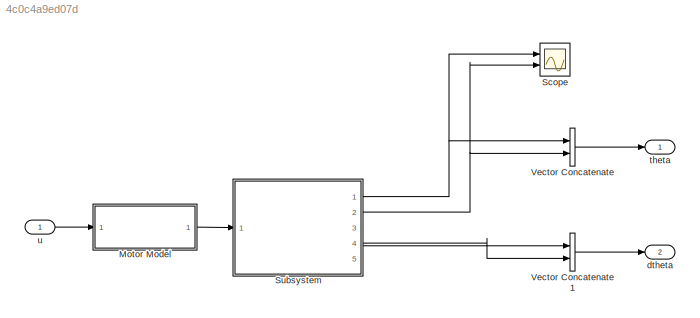
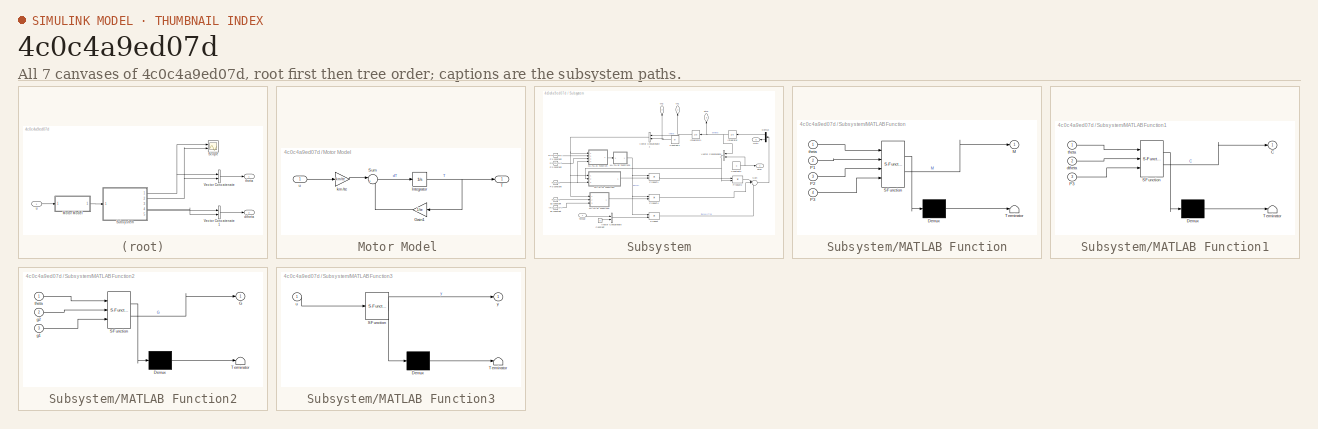
[diagram: thumbnail index - all 7 canvases of the model, root first then tree order]
MODEL slx_4c0c4a9ed07d
KIND model
CONFIG AbsTol = auto
CONFIG EnableMultiTasking = off
CONFIG FixedStep = auto
CONFIG MaxStep = auto
CONFIG MinStep = auto
CONFIG RelTol = 1e-3
CONFIG SampleTimeConstraint = Unconstrained
CONFIG SolverName = VariableStepAuto
CONFIG StartTime = 0.0
CONFIG StopTime = 500
BLOCK [SubSystem] Motor Model 
  Ports = [1, 1]
  RequestExecContextInheritance = off
BLOCK [Gain] Motor Model /Gain1
  Gain = 1/te
  NameLocation = top
BLOCK [Integrator] Motor Model /Integrator
  Ports = [1, 1]
BLOCK [Sum] Motor Model /Sum
  Inputs = |+-
  Ports = [2, 1]
BLOCK [Outport] Motor Model /T
BLOCK [Gain] Motor Model /km//te 
  Gain = km/te
BLOCK [Inport] Motor Model /u
BLOCK [Scope] Scope
  Floating = off
  NumInputPorts = 2
  Ports = [2]
  ScopeSpecificationString = Simulink.scopes.TimeScopeBlockCfg('CurrentConfiguration', extmgr.ConfigurationSet(extmgr.Configuration('Core','General UI',true),extmgr.Configuration('Core','Source UI',true),extmgr.Configuration('Sources','WiredSimulink',true),extmgr.Configuration('Visuals','Time Domain',true,'SerializedDisplays',{struct('MinYLimReal','0.7854','MaxYLimReal','3.40339','YLabelReal','','MinYLimMag','0.7854','MaxYLim...<+1425ch>
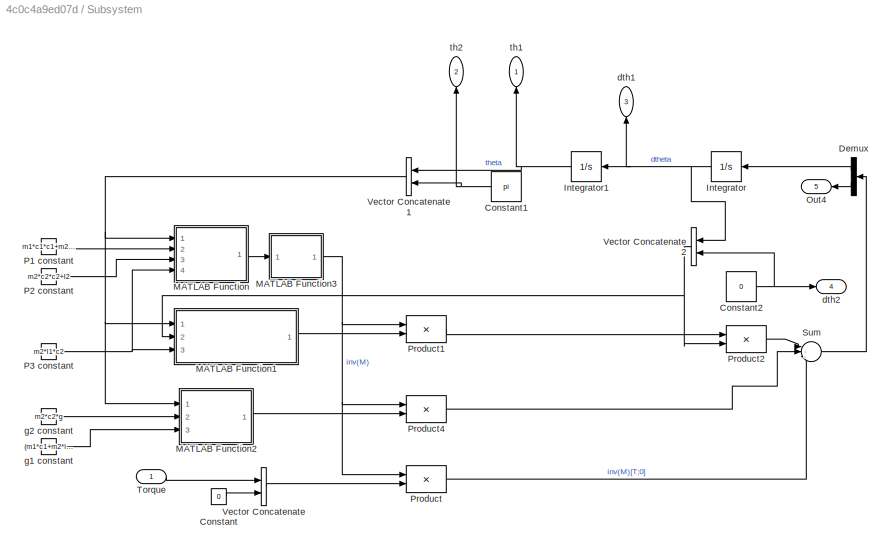
BLOCK [SubSystem] Subsystem
  PortSchema = {"entries":[{"content":{"sides":[{"content":{"connectorIds":["In1"]},"type":"ConnectorPlacement.EquallySpacedRectSide","uuid":"550e1cda-c923-4cd7-8fca-827ebc06ac0d"},{"content":{"connectorIds":["Out1","Out2","Out3","Out4"],"side":"RIGHT"},"type":"ConnectorPlacement.EquallySpacedRectSide","uuid":"920df8af-3423-40a4-8eb5-84941c7c0c25"},{"content":{"connectorIds":[],"side":"TOP"},"type":"ConnectorPla...<+555ch>
  Ports = [1, 5]
  RequestExecContextInheritance = off
BLOCK [Constant] Subsystem/Constant
  NameLocation = top
  Value = 0
BLOCK [Constant] Subsystem/Constant1
  NameLocation = top
  Value = pi
BLOCK [Constant] Subsystem/Constant2
  Value = 0
BLOCK [Demux] Subsystem/Demux
  NameLocation = top
  Outputs = 2
  Ports = [1, 2]
BLOCK [Integrator] Subsystem/Integrator
  InitialCondition = thetadot0(1)
  NameLocation = top
  Ports = [1, 1]
BLOCK [Integrator] Subsystem/Integrator1
  InitialCondition = theta0(1)
  NameLocation = top
  Ports = [1, 1]
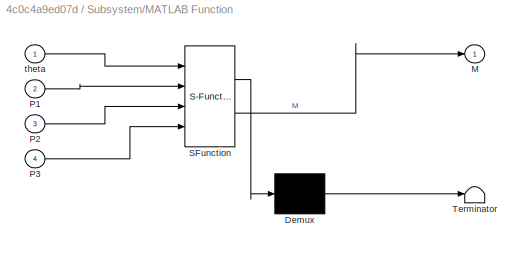
BLOCK [SubSystem] Subsystem/MATLAB Function
  ErrorFcn = Stateflow.Translate.translate
  PermitHierarchicalResolution = ExplicitOnly
  Ports = [4, 1]
  RequestExecContextInheritance = off
  SFBlockType = MATLAB Function
  TreatAsAtomicUnit = on
BLOCK [Demux] Subsystem/MATLAB Function/ Demux 
  Outputs = 1
  Ports = [1, 1]
BLOCK [S-Function] Subsystem/MATLAB Function/ SFunction 
  EnableBusSupport = on
  FunctionName = sf_sfun
  PortCounts = [4 2]
  Ports = [4, 2]
  SFcnIsStateOwnerBlock = off
  SFunctionDeploymentMode = off
  Tag = Stateflow S-Function 5
BLOCK [Terminator] Subsystem/MATLAB Function/ Terminator 
BLOCK [Outport] Subsystem/MATLAB Function/M
BLOCK [Inport] Subsystem/MATLAB Function/P1
  Port = 2
BLOCK [Inport] Subsystem/MATLAB Function/P2
  Port = 3
BLOCK [Inport] Subsystem/MATLAB Function/P3
  Port = 4
BLOCK [Inport] Subsystem/MATLAB Function/theta
BLOCK [SubSystem] Subsystem/MATLAB Function1
  ErrorFcn = Stateflow.Translate.translate
  PermitHierarchicalResolution = ExplicitOnly
  Ports = [3, 1]
  RequestExecContextInheritance = off
  SFBlockType = MATLAB Function
  TreatAsAtomicUnit = on
BLOCK [Demux] Subsystem/MATLAB Function1/ Demux 
  Outputs = 1
  Ports = [1, 1]
BLOCK [S-Function] Subsystem/MATLAB Function1/ SFunction 
  EnableBusSupport = on
  FunctionName = sf_sfun
  Parameters = b1,b2
  PortCounts = [3 2]
  Ports = [3, 2]
  SFcnIsStateOwnerBlock = off
  SFunctionDeploymentMode = off
  Tag = Stateflow S-Function 6
BLOCK [Terminator] Subsystem/MATLAB Function1/ Terminator 
BLOCK [Outport] Subsystem/MATLAB Function1/C
BLOCK [Inport] Subsystem/MATLAB Function1/P3
  Port = 3
BLOCK [Inport] Subsystem/MATLAB Function1/dtheta
  Port = 2
BLOCK [Inport] Subsystem/MATLAB Function1/theta
BLOCK [SubSystem] Subsystem/MATLAB Function2
  ErrorFcn = Stateflow.Translate.translate
  PermitHierarchicalResolution = ExplicitOnly
  Ports = [3, 1]
  RequestExecContextInheritance = off
  SFBlockType = MATLAB Function
  TreatAsAtomicUnit = on
BLOCK [Demux] Subsystem/MATLAB Function2/ Demux 
  Outputs = 1
  Ports = [1, 1]
BLOCK [S-Function] Subsystem/MATLAB Function2/ SFunction 
  EnableBusSupport = on
  FunctionName = sf_sfun
  PortCounts = [3 2]
  Ports = [3, 2]
  SFcnIsStateOwnerBlock = off
  SFunctionDeploymentMode = off
  Tag = Stateflow S-Function 7
BLOCK [Terminator] Subsystem/MATLAB Function2/ Terminator 
BLOCK [Outport] Subsystem/MATLAB Function2/G
BLOCK [Inport] Subsystem/MATLAB Function2/g1
  Port = 3
BLOCK [Inport] Subsystem/MATLAB Function2/g2
  Port = 2
BLOCK [Inport] Subsystem/MATLAB Function2/theta
BLOCK [SubSystem] Subsystem/MATLAB Function3
  ErrorFcn = Stateflow.Translate.translate
  PermitHierarchicalResolution = ExplicitOnly
  Ports = [1, 1]
  RequestExecContextInheritance = off
  SFBlockType = MATLAB Function
  TreatAsAtomicUnit = on
BLOCK [Demux] Subsystem/MATLAB Function3/ Demux 
  Outputs = 1
  Ports = [1, 1]
BLOCK [S-Function] Subsystem/MATLAB Function3/ SFunction 
  EnableBusSupport = on
  FunctionName = sf_sfun
  PortCounts = [1 2]
  Ports = [1, 2]
  SFcnIsStateOwnerBlock = off
  SFunctionDeploymentMode = off
  Tag = Stateflow S-Function 8
BLOCK [Terminator] Subsystem/MATLAB Function3/ Terminator 
BLOCK [Inport] Subsystem/MATLAB Function3/u
BLOCK [Outport] Subsystem/MATLAB Function3/y
BLOCK [Outport] Subsystem/Out4
  Port = 5
BLOCK [Constant] Subsystem/P1 constant
  Value = m1*c1*c1+m2*l1*l1+I1
BLOCK [Constant] Subsystem/P2 constant
  Value = m2*c2*c2+I2
BLOCK [Constant] Subsystem/P3 constant
  Value = m2*l1*c2
BLOCK [Product] Subsystem/Product
  Multiplication = Matrix(*)
  Ports = [2, 1]
BLOCK [Product] Subsystem/Product1
  Multiplication = Matrix(*)
  Ports = [2, 1]
BLOCK [Product] Subsystem/Product2
  Multiplication = Matrix(*)
  Ports = [2, 1]
BLOCK [Product] Subsystem/Product4
  Multiplication = Matrix(*)
  Ports = [2, 1]
BLOCK [Sum] Subsystem/Sum
  Inputs = |--+
  Ports = [3, 1]
BLOCK [Inport] Subsystem/Torque
BLOCK [Concatenate] Subsystem/Vector Concatenate
  Ports = [2, 1]
BLOCK [Concatenate] Subsystem/Vector Concatenate1
  NameLocation = top
  Ports = [2, 1]
BLOCK [Concatenate] Subsystem/Vector Concatenate2
  NameLocation = top
  Ports = [2, 1]
BLOCK [Outport] Subsystem/dth1
  NameLocation = right
  Port = 3
BLOCK [Outport] Subsystem/dth2
  Port = 4
BLOCK [Constant] Subsystem/g1 constant
  Value = (m1*c1+m2*l1)*g
BLOCK [Constant] Subsystem/g2 constant
  Value = m2*c2*g
BLOCK [Outport] Subsystem/th1
  NameLocation = right
BLOCK [Outport] Subsystem/th2
  NameLocation = right
  Port = 2
BLOCK [Concatenate] Vector Concatenate
  Ports = [2, 1]
BLOCK [Concatenate] Vector Concatenate1
  Ports = [2, 1]
BLOCK [Outport] dtheta
  Port = 2
BLOCK [Outport] theta
BLOCK [Inport] u
LINE Motor Model /Gain1:1 -> Motor Model /Sum:2
NET Motor Model /Integrator:1 -> Motor Model /Gain1:1, Motor Model /T:1
LINE Motor Model /Sum:1 -> Motor Model /Integrator:1
LINE Motor Model /km//te :1 -> Motor Model /Sum:1
LINE Motor Model /u:1 -> Motor Model /km//te :1
LINE Motor Model :1 -> Subsystem:1
NET Subsystem/Constant1:1 -> Subsystem/Vector Concatenate1:2, Subsystem/th2:1
NET Subsystem/Constant2:1 -> Subsystem/Vector Concatenate2:2, Subsystem/dth2:1
LINE Subsystem/Constant:1 -> Subsystem/Vector Concatenate:2
LINE Subsystem/Demux:1 -> Subsystem/Integrator:1
LINE Subsystem/Demux:2 -> Subsystem/Out4:1
NET Subsystem/Integrator1:1 -> Subsystem/Vector Concatenate1:1, Subsystem/th1:1
NET Subsystem/Integrator:1 -> Subsystem/Integrator1:1, Subsystem/Vector Concatenate2:1, Subsystem/dth1:1
LINE Subsystem/MATLAB Function1:1 -> Subsystem/Product1:2
LINE Subsystem/MATLAB Function2:1 -> Subsystem/Product4:2
NET Subsystem/MATLAB Function3:1 -> Subsystem/Product1:1, Subsystem/Product4:1, Subsystem/Product:1
LINE Subsystem/MATLAB Function:1 -> Subsystem/MATLAB Function3:1
LINE Subsystem/P1 constant:1 -> Subsystem/MATLAB Function:2
LINE Subsystem/P2 constant:1 -> Subsystem/MATLAB Function:3
NET Subsystem/P3 constant:1 -> Subsystem/MATLAB Function1:3, Subsystem/MATLAB Function:4
LINE Subsystem/Product1:1 -> Subsystem/Product2:1
LINE Subsystem/Product2:1 -> Subsystem/Sum:1
LINE Subsystem/Product4:1 -> Subsystem/Sum:2
LINE Subsystem/Product:1 -> Subsystem/Sum:3
LINE Subsystem/Sum:1 -> Subsystem/Demux:1
LINE Subsystem/Torque:1 -> Subsystem/Vector Concatenate:1
NET Subsystem/Vector Concatenate1:1 -> Subsystem/MATLAB Function1:1, Subsystem/MATLAB Function2:1, Subsystem/MATLAB Function:1
NET Subsystem/Vector Concatenate2:1 -> Subsystem/MATLAB Function1:2, Subsystem/Product2:2
LINE Subsystem/Vector Concatenate:1 -> Subsystem/Product:2
LINE Subsystem/g1 constant:1 -> Subsystem/MATLAB Function2:3
LINE Subsystem/g2 constant:1 -> Subsystem/MATLAB Function2:2
NET Subsystem:1 -> Scope:1, Vector Concatenate:1
NET Subsystem:2 -> Scope:2, Vector Concatenate:2
LINE Subsystem:3 -> Vector Concatenate1:1
LINE Subsystem:4 -> Vector Concatenate1:2
LINE Vector Concatenate1:1 -> dtheta:1
LINE Vector Concatenate:1 -> theta:1
LINE u:1 -> Motor Model :1
note: NET lines group one-source signal fan-out (src -> all destinations, sorted); 1:1 wires keep LINE
CHART Subsystem/MATLAB Function states=1 transitions=1
  STATE_LABEL 'eML_blk_kernel()'
  STATE_LABEL 'SCRIPT:\nfunction M = M_matrix(theta,P1, P2, P3)\n    M = [P1+P2+2*P3*cos(theta(2)) P2+P3*cos(theta(2));\n         P2+P3*cos(theta(2))      P2];\n'
CHART Subsystem/MATLAB Function1 states=1 transitions=1
  STATE_LABEL 'eML_blk_kernel()'
  STATE_LABEL 'SCRIPT:\nfunction C = C_matrix(theta, dtheta,b1,b2, P3)\nC = [b1-P3*dtheta(2)*sin(theta(2))  -P3*(dtheta(1)+dtheta(2))*sin(theta(2));\n     P3*dtheta(1)*sin(theta(2))     b2];\n'
CHART Subsystem/MATLAB Function2 states=1 transitions=1
  STATE_LABEL 'eML_blk_kernel()'
  STATE_LABEL 'SCRIPT:\nfunction G = G_matrix(theta,g2, g1)\nG = [-g1*sin(theta(1))-g2*sin(theta(1)+theta(2));\n     -g2*sin(theta(1)+theta(2))];\n'
CHART Subsystem/MATLAB Function3 states=1 transitions=1
  STATE_LABEL 'eML_blk_kernel()'
  STATE_LABEL 'SCRIPT:\nfunction y = inverse(u)\ny = inv(u);\n'
CHART  states=0 transitions=0
CHART  states=0 transitions=0
CHART  states=0 transitions=0
CHART  states=0 transitions=0
